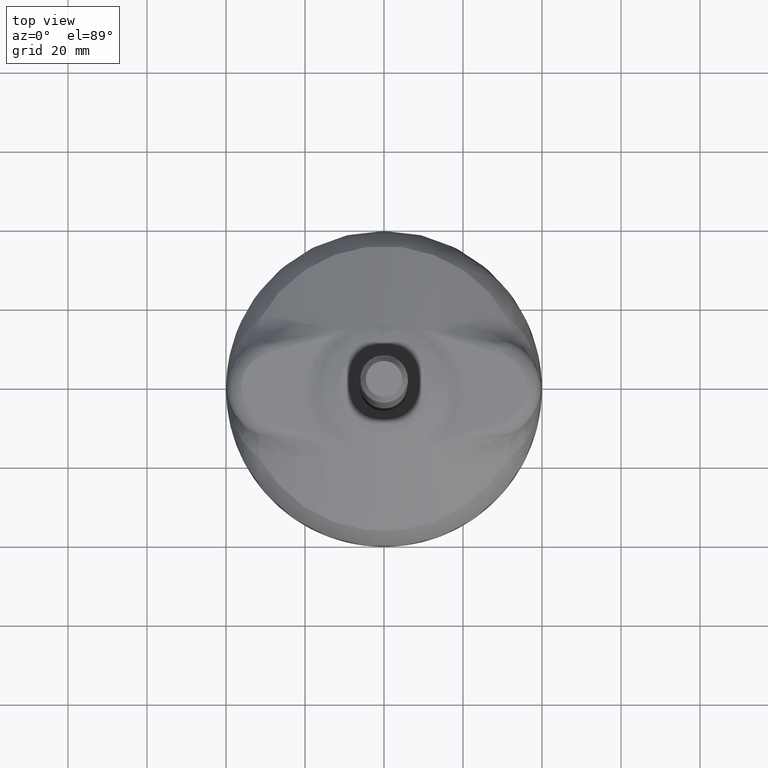
[diagram: clean part render]
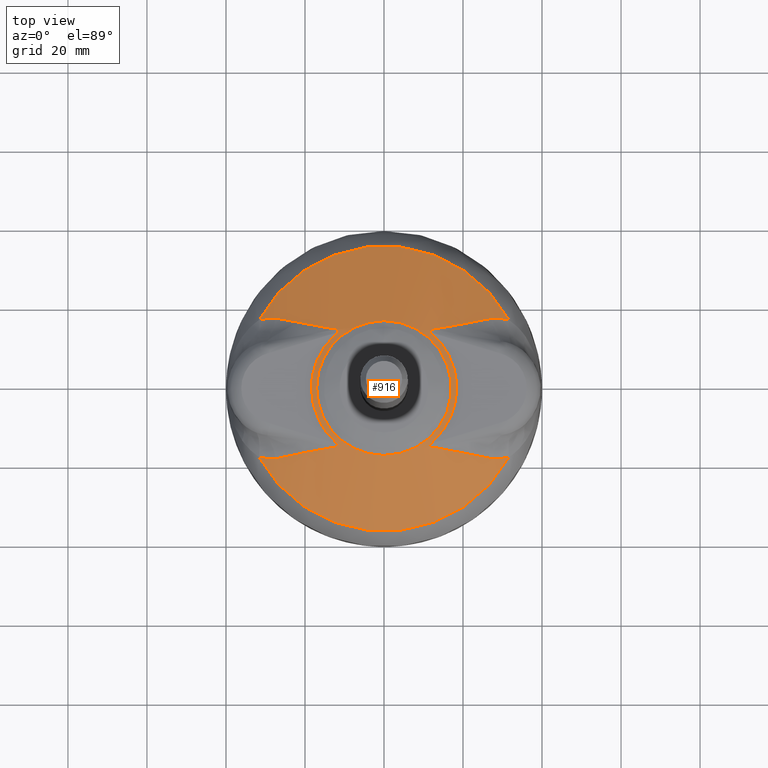
[diagram: same view with one face highlighted and labeled with its STEP entity id]
A machine part, top view. The second image highlights one B-rep face of the part: STEP entity #916.
In plain terms, the highlighted face is a freeform B-spline surface patch.
Its self-contained STEP definition (entity closure, byte-faithful):
#161=CARTESIAN_POINT('',(-31.670609526249098,17.322778746695992,6.870348582546770));
#162=VERTEX_POINT('',#161);
#196=CARTESIAN_POINT('',(31.670609242388803,17.322777597481650,6.870352788680468));
#197=VERTEX_POINT('',#196);
#198=CARTESIAN_POINT('',(-0.000000456221617,0.000002086571564,6.870355946652809));
#199=DIRECTION('',(0.000000066404364,-0.000000303706472,-0.999999999999952));
#200=DIRECTION('',(3.866960E-029,0.999999999999954,-0.000000303706472));
#201=AXIS2_PLACEMENT_3D('',#198,#199,#200);
#202=CIRCLE('',#201,36.098560498766609);
#203=EDGE_CURVE('',#162,#197,#202,.T.);
#335=CARTESIAN_POINT('',(-17.051754797582301,-0.000000682070181,14.704977382487098));
#336=CARTESIAN_POINT('',(-17.051765093716494,34.103507642213621,14.704967025030216));
#337=CARTESIAN_POINT('',(17.051743912638809,34.103518620418924,14.704969289648721));
#338=CARTESIAN_POINT('',(17.051752844633011,0.000008931994330,14.704979647105915));
#339=CARTESIAN_POINT('',(17.051761776627259,-34.103500756430257,14.704990004563113));
#340=CARTESIAN_POINT('',(-17.051747229729123,-34.103507642214417,14.704987739943387));
#341=CARTESIAN_POINT('',(-17.051754797582678,0.000000682070090,14.704977382486701));
#342=CARTESIAN_POINT('',(-23.697713304537071,-0.000000947908518,13.060306376745867));
#343=CARTESIAN_POINT('',(-23.697723133353470,47.395424874549178,13.060291982447650));
#344=CARTESIAN_POINT('',(23.697703637014691,47.395435651275342,13.060295129707564));
#345=CARTESIAN_POINT('',(23.697711570014373,0.000007933000142,13.060309524006220));
#346=CARTESIAN_POINT('',(23.697719503014110,-47.395419785275045,13.060323918304880));
#347=CARTESIAN_POINT('',(-23.697707267355021,-47.395424874549896,13.060320771043260));
#348=CARTESIAN_POINT('',(-23.697713304537409,0.000000947908427,13.060306376745308));
#349=CARTESIAN_POINT('',(-30.101303251753649,-0.000001204052116,10.448061369442806));
#350=CARTESIAN_POINT('',(-30.101312006145793,60.202605115910636,10.448043085521059));
#351=CARTESIAN_POINT('',(30.101295517871645,60.202615074356437,10.448047083233909));
#352=CARTESIAN_POINT('',(30.101301864159808,0.000006346288971,10.448065367156220));
#353=CARTESIAN_POINT('',(30.101308210448018,-60.202602381778476,10.448083651078532));
#354=CARTESIAN_POINT('',(-30.101299313570198,-60.202605115911233,10.448079653363502));
#355=CARTESIAN_POINT('',(-30.101303251753926,0.000001204052025,10.448061369442087));
#356=CARTESIAN_POINT('',(-36.098562921782445,-0.000001443942507,6.870352376246374));
#357=CARTESIAN_POINT('',(-36.098569982808577,72.197124931118609,6.870330449511374));
#358=CARTESIAN_POINT('',(36.098557836198211,72.197133436089047,6.870335243713155));
#359=CARTESIAN_POINT('',(36.098562009339489,0.000004173142462,6.870357170448832));
#360=CARTESIAN_POINT('',(36.098566182480823,-72.197125089804103,6.870379097184515));
#361=CARTESIAN_POINT('',(-36.098561636526490,-72.197124931119035,6.870374302980111));
#362=CARTESIAN_POINT('',(-36.098562921782630,0.000001443942415,6.870352376245504));
#370=(BOUNDED_SURFACE()B_SPLINE_SURFACE(3,3,((#335,#342,#349,#356),(#336,#343,#350,#357),(#337,#344,#351,#358),(#338,#345,#352,#359),(#339,#346,#353,#360),(#340,#347,#354,#361),(#341,#348,#355,#362)),.UNSPECIFIED.,.T.,.F.,.U.)B_SPLINE_SURFACE_WITH_KNOTS((4,3,4),(4,4),(-1.000000E-008,0.500000000000000,1.000000010000000),(0.082997603850490,0.175616742763450),.UNSPECIFIED.)GEOMETRIC_REPRESENTATION_ITEM()RATIONAL_B_SPLINE_SURFACE(((0.918572759748706,0.894312356982217,0.876779335575880,0.865973695529694),(0.306190907668599,0.298104107069908,0.292259766834903,0.288657886963583),(0.306190895420962,0.298104095145743,0.292259755144512,0.288657875417267),(0.918572723005796,0.894312321209723,0.876779300504707,0.865973660890747),(0.306190895420962,0.298104095145743,0.292259755144512,0.288657875417267),(0.306190907668599,0.298104107069908,0.292259766834903,0.288657886963583),(0.918572759748706,0.894312356982217,0.876779335575880,0.865973695529694)))REPRESENTATION_ITEM('')SURFACE());
#371=CARTESIAN_POINT('',(-18.373600121841804,-3.001937E-011,14.364149395563031));
#372=VERTEX_POINT('',#371);
#373=CARTESIAN_POINT('',(-17.051756893401691,-4.541278E-014,14.704976863835860));
#374=VERTEX_POINT('',#373);
#375=CARTESIAN_POINT('',(-18.373610457035458,-4.555379E-014,14.364146622960124));
#376=CARTESIAN_POINT('',(-17.933718828474031,-4.555379E-014,14.482155574846166));
#377=CARTESIAN_POINT('',(-17.493084704977210,-4.555379E-014,14.595761744455965));
#378=CARTESIAN_POINT('',(-17.051756893401691,-4.555379E-014,14.704976863835869));
#386=(BOUNDED_CURVE()B_SPLINE_CURVE(3,(#375,#376,#377,#378),.UNSPECIFIED.,.F.,.U.)B_SPLINE_CURVE_WITH_KNOTS((4,4),(0.082997613850490,0.089303514181248),.UNSPECIFIED.)CURVE()GEOMETRIC_REPRESENTATION_ITEM()RATIONAL_B_SPLINE_CURVE((0.913711018516788,0.915300399562479,0.916920965106109,0.918572715147679))REPRESENTATION_ITEM(''));
#387=EDGE_CURVE('',#372,#374,#386,.T.);
#388=ORIENTED_EDGE('',*,*,#387,.T.);
#389=CARTESIAN_POINT('',(-0.000000976474711,17.051760382923785,14.704972817416817));
#390=VERTEX_POINT('',#389);
#391=CARTESIAN_POINT('',(-0.000000976474712,0.000004465996985,14.704977996145512));
#392=DIRECTION('',(0.000000066404364,-0.000000303706472,-0.999999999999952));
#393=DIRECTION('',(3.866960E-029,0.999999999999954,-0.000000303706472));
#394=AXIS2_PLACEMENT_3D('',#391,#392,#393);
#395=CIRCLE('',#394,17.051755916927601);
#396=EDGE_CURVE('',#374,#390,#395,.T.);
#397=ORIENTED_EDGE('',*,*,#396,.T.);
#398=CARTESIAN_POINT('',(-0.000000976474712,-17.051751450929832,14.704983174874137));
#399=VERTEX_POINT('',#398);
#400=CARTESIAN_POINT('',(-0.000000976474712,0.000004465996985,14.704977996145512));
#401=DIRECTION('',(0.000000066404364,-0.000000303706472,-0.999999999999952));
#402=DIRECTION('',(3.866960E-029,0.999999999999954,-0.000000303706472));
#403=AXIS2_PLACEMENT_3D('',#400,#401,#402);
#404=CIRCLE('',#403,17.051755916927601);
#405=EDGE_CURVE('',#390,#399,#404,.T.);
#406=ORIENTED_EDGE('',*,*,#405,.T.);
#407=CARTESIAN_POINT('',(-0.000000976474712,0.000004465996985,14.704977996145512));
#408=DIRECTION('',(0.000000066404364,-0.000000303706472,-0.999999999999952));
#409=DIRECTION('',(3.866960E-029,0.999999999999954,-0.000000303706472));
#410=AXIS2_PLACEMENT_3D('',#407,#408,#409);
#411=CIRCLE('',#410,17.051755916927601);
#412=EDGE_CURVE('',#399,#374,#411,.T.);
#413=ORIENTED_EDGE('',*,*,#412,.T.);
#414=ORIENTED_EDGE('',*,*,#387,.F.);
#415=CARTESIAN_POINT('',(-12.247463358286939,-13.696315976480724,14.364151189422822));
#416=VERTEX_POINT('',#415);
#417=CARTESIAN_POINT('',(-18.373594954244979,-4.500628E-011,14.364150781864485));
#418=CARTESIAN_POINT('',(-18.373595489222808,-0.473193171099889,14.364150752290669));
#419=CARTESIAN_POINT('',(-18.355370197100772,-0.964727823121007,14.364150729497545));
#420=CARTESIAN_POINT('',(-18.273343016513408,-1.983757791892489,14.364150697857010));
#421=CARTESIAN_POINT('',(-18.209535340886092,-2.511273229795026,14.364150689016110));
#422=CARTESIAN_POINT('',(-18.025980788196634,-3.599683988416787,14.364150685186567));
#423=CARTESIAN_POINT('',(-17.906220911569921,-4.160602654323903,14.364150690205889));
#424=CARTESIAN_POINT('',(-17.599424996325300,-5.310709786240011,14.364150713297661));
#425=CARTESIAN_POINT('',(-17.412365187776391,-5.899921837350972,14.364150731378846));
#426=CARTESIAN_POINT('',(-16.959197403748455,-7.098253214269185,14.364150778836329));
#427=CARTESIAN_POINT('',(-16.693052403121470,-7.707391750772212,14.364150808220909));
#428=CARTESIAN_POINT('',(-16.070410536808190,-8.933298769303180,14.364150875307070));
#429=CARTESIAN_POINT('',(-15.713862767155041,-9.550075112863258,14.364150913014422));
#430=CARTESIAN_POINT('',(-14.900899340782241,-10.774630007609298,14.364150992328058));
#431=CARTESIAN_POINT('',(-14.444422029176119,-11.382396372928046,14.364151033934757));
#432=CARTESIAN_POINT('',(-13.425576679570838,-12.567983169716930,14.364151115084960));
#433=CARTESIAN_POINT('',(-12.863144926522892,-13.145763087682431,14.364151154620401));
#434=CARTESIAN_POINT('',(-12.247463358286950,-13.696315976480724,14.364151189422822));
#435=B_SPLINE_CURVE_WITH_KNOTS('',3,(#417,#418,#419,#420,#421,#422,#423,#424,#425,#426,#427,#428,#429,#430,#431,#432,#433,#434),.UNSPECIFIED.,.F.,.U.,(4,2,2,2,2,2,2,2,4),(0.500000801886927,0.562500000000000,0.625000000000000,0.687500000000000,0.750000000000000,0.812500000000000,0.875000000000000,0.937500000000000,1.0),.UNSPECIFIED.);
#436=EDGE_CURVE('',#372,#416,#435,.T.);
#437=ORIENTED_EDGE('',*,*,#436,.T.);
#438=CARTESIAN_POINT('',(-27.431562335859390,-17.807965664157329,8.769065912218522));
#439=VERTEX_POINT('',#438);
#440=CARTESIAN_POINT('',(-12.247463358286987,-13.696315976480770,14.364151189422799));
#441=CARTESIAN_POINT('',(-12.209832988893019,-13.730262159650678,14.364059602406808));
#442=CARTESIAN_POINT('',(-12.137080330507088,-13.795891998194389,14.363882532689061));
#443=CARTESIAN_POINT('',(-12.033966366089860,-13.893418626419088,14.362339196065282));
#444=CARTESIAN_POINT('',(-11.940307916815570,-13.986229092528301,14.359839152975033));
#445=CARTESIAN_POINT('',(-11.856383946903721,-14.074611726127454,14.356306029212039));
#446=CARTESIAN_POINT('',(-11.782312837391339,-14.158676579245741,14.351755836109920));
#447=CARTESIAN_POINT('',(-11.718239124224098,-14.238564822603919,14.346180618058742));
#448=CARTESIAN_POINT('',(-11.664284971735450,-14.314400054819128,14.339576478922259));
#449=CARTESIAN_POINT('',(-11.620581705877962,-14.386311387919767,14.331930958344989));
#450=CARTESIAN_POINT('',(-11.587220036425382,-14.454415361836999,14.323235729448459));
#451=CARTESIAN_POINT('',(-11.564454089920238,-14.518887054311941,14.313436652141160));
#452=CARTESIAN_POINT('',(-11.550454299254202,-14.588111487463019,14.301080086134400));
#453=CARTESIAN_POINT('',(-11.553049244221052,-14.664015066789222,14.284416800333322));
#454=CARTESIAN_POINT('',(-11.584492400240290,-14.742822891276219,14.262153708770517));
#455=CARTESIAN_POINT('',(-11.642762995970603,-14.813128558573840,14.237058332424890));
#456=CARTESIAN_POINT('',(-11.726565713952819,-14.875319115402487,14.209222923904600));
#457=CARTESIAN_POINT('',(-11.835836202788059,-14.930020457719049,14.178446128352928));
#458=CARTESIAN_POINT('',(-11.952757568569606,-14.970798373631030,14.149133505850861));
#459=CARTESIAN_POINT('',(-12.074502627004128,-15.002986779103619,14.120617324645158));
#460=CARTESIAN_POINT('',(-12.199457717514630,-15.030389314311190,14.092354045883852));
#461=CARTESIAN_POINT('',(-12.345582181508160,-15.057339795320109,14.060106630801339));
#462=CARTESIAN_POINT('',(-12.533994772480932,-15.086061837716732,14.019389149782461));
#463=CARTESIAN_POINT('',(-12.752959244958292,-15.115636633041101,13.972188320813462));
#464=CARTESIAN_POINT('',(-12.990595053267748,-15.145981314922910,13.920436567830970));
#465=CARTESIAN_POINT('',(-13.214413319678448,-15.172380227144171,13.871366884159082));
#466=CARTESIAN_POINT('',(-13.424192674544150,-15.195480969686610,13.825026245952472));
#467=CARTESIAN_POINT('',(-13.619776487819788,-15.215653386750802,13.781503342096141));
#468=CARTESIAN_POINT('',(-13.801016676987109,-15.233298051181023,13.740870136408017));
#469=CARTESIAN_POINT('',(-13.967785045423412,-15.248771458114271,13.703195962219667));
#470=CARTESIAN_POINT('',(-14.119968800480232,-15.262401924352748,13.668544477296340));
#471=CARTESIAN_POINT('',(-14.257468858468423,-15.274491545060281,13.636973234325790));
#472=CARTESIAN_POINT('',(-14.380201718125249,-15.285295852918699,13.608537570987091));
#473=CARTESIAN_POINT('',(-14.488088220254559,-15.295088956018940,13.583278006629490));
#474=CARTESIAN_POINT('',(-14.581084706190271,-15.303959705742320,13.561259452844940));
#475=CARTESIAN_POINT('',(-14.712398275002959,-15.318190946084552,13.529603718174139));
#476=CARTESIAN_POINT('',(-14.887421784743001,-15.339409452402350,13.486479527045294));
#477=CARTESIAN_POINT('',(-15.111820044958559,-15.367419675296080,13.430200681064051));
#478=CARTESIAN_POINT('',(-15.337930053511906,-15.397360422040350,13.372278856798726));
#479=CARTESIAN_POINT('',(-15.565814916994970,-15.428987902044279,13.312730911247423));
#480=CARTESIAN_POINT('',(-15.795486116651968,-15.462370691331298,13.251513283743957));
#481=CARTESIAN_POINT('',(-16.026967222138303,-15.497493149090710,13.188598087380592));
#482=CARTESIAN_POINT('',(-16.260276578710560,-15.534363285338031,13.123952418853246));
#483=CARTESIAN_POINT('',(-16.495432027137145,-15.572983451260120,13.057543986375737));
#484=CARTESIAN_POINT('',(-16.732449630235010,-15.613358336357038,12.989339580072359));
#485=CARTESIAN_POINT('',(-16.971344029786756,-15.655492812446932,12.919305490123866));
#486=CARTESIAN_POINT('',(-17.212128354453007,-15.699392553883779,12.847407392769700));
#487=CARTESIAN_POINT('',(-17.454814265813702,-15.745063840671850,12.773610391137762));
#488=CARTESIAN_POINT('',(-17.699411901246179,-15.792513810935509,12.697878977200828));
#489=CARTESIAN_POINT('',(-17.945930088306891,-15.841749723419321,12.620177155935687));
#490=CARTESIAN_POINT('',(-18.194375557241635,-15.892781771483470,12.540467993382894));
#491=CARTESIAN_POINT('',(-18.444755938393961,-15.945612482862600,12.458715339511780));
#492=CARTESIAN_POINT('',(-18.697068410478600,-16.000276948349470,12.374877311290989));
#493=CARTESIAN_POINT('',(-19.163954951185300,-16.103860623028979,12.217066762515538));
#494=CARTESIAN_POINT('',(-19.884898628639739,-16.274665802541229,11.963368538122641));
#495=CARTESIAN_POINT('',(-20.899377005651679,-16.524824152363362,11.586375166424139));
#496=CARTESIAN_POINT('',(-22.041516210718576,-16.805725456550658,11.139258091797210));
#497=CARTESIAN_POINT('',(-23.022478480071761,-17.040668032064438,10.734469175106639));
#498=CARTESIAN_POINT('',(-23.802836837681781,-17.218351376862799,10.401351568483710));
#499=CARTESIAN_POINT('',(-24.340515386702400,-17.334504178366466,10.167918560183690));
#500=CARTESIAN_POINT('',(-24.879534099883521,-17.445138416667639,9.929827893110774));
#501=CARTESIAN_POINT('',(-25.341641095891600,-17.536052056434919,9.721903130600763));
#502=CARTESIAN_POINT('',(-25.724741413520654,-17.606222393972502,9.547765899863554));
#503=CARTESIAN_POINT('',(-26.026324489312866,-17.655576341124657,9.410510539626383));
#504=CARTESIAN_POINT('',(-26.320929496934959,-17.698626260772194,9.276148152865066));
#505=CARTESIAN_POINT('',(-26.608551741201417,-17.735351241101721,9.144827532078436));
#506=CARTESIAN_POINT('',(-26.889139724062680,-17.765767861774680,9.016656249013774));
#507=CARTESIAN_POINT('',(-27.162616742180440,-17.790517875267589,8.891742372642277));
#508=CARTESIAN_POINT('',(-27.342750936896739,-17.802204043307160,8.809576217373497));
#509=CARTESIAN_POINT('',(-27.431562335859390,-17.807965664157329,8.769065912218522));
#510=B_SPLINE_CURVE_WITH_KNOTS('',3,(#440,#441,#442,#443,#444,#445,#446,#447,#448,#449,#450,#451,#452,#453,#454,#455,#456,#457,#458,#459,#460,#461,#462,#463,#464,#465,#466,#467,#468,#469,#470,#471,#472,#473,#474,#475,#476,#477,#478,#479,#480,#481,#482,#483,#484,#485,#486,#487,#488,#489,#490,#491,#492,#493,#494,#495,#496,#497,#498,#499,#500,#501,#502,#503,#504,#505,#506,#507,#508,#509),.UNSPECIFIED.,.F.,.U.,(4,1,1,1,1,1,1,1,1,1,1,1,1,1,1,1,1,1,1,1,1,1,1,1,1,1,1,1,1,1,1,1,1,1,1,1,1,1,1,1,1,1,1,1,1,1,1,1,1,1,1,1,1,1,1,1,1,1,1,1,1,1,1,1,1,1,1,4),(0.0,0.008234198882158,0.015919584846048,0.023059545091950,0.029659387797493,0.035726980885653,0.041273677459984,0.046315667912286,0.050875959053944,0.054987234860194,0.058695819219114,0.062066606842298,0.066594691703850,0.071115724280556,0.076068556914226,0.081802103688626,0.088552886772564,0.096473723663069,0.102436528874756,0.109525666525436,0.117755230341667,0.127137341796711,0.141188731565862,0.154465411914163,0.166959707840485,0.178664521219337,0.189573315189582,0.199680100222871,0.208979422595926,0.217466356355529,0.225136500568192,0.231985985054032,0.238011490787353,0.243210297967959,0.247580391989394,0.260079756808970,0.272700305958176,0.285444547726351,0.298314912936970,0.311313757542057,0.324443365213282,0.337705949919458,0.351103658481478,0.364638573096835,0.378312713826999,0.392128041041881,0.406086457816590,0.420189812276499,0.434439899887392,0.448838465688210,0.463387206464462,0.478087772861003,0.492941771433287,0.545212716572814,0.605320229309287,0.673418294525018,0.749651547382571,0.781905315923493,0.814269290003771,0.846741611726366,0.879320406435158,0.897915977271629,0.916058907457288,0.933749452097114,0.950988061218804,0.967775393396867,0.984112331376325,1.0),.UNSPECIFIED.);
#511=EDGE_CURVE('',#416,#439,#510,.T.);
#512=ORIENTED_EDGE('',*,*,#511,.T.);
#513=CARTESIAN_POINT('',(-31.670606601228080,-17.322779921263709,6.870359104627349));
#514=VERTEX_POINT('',#513);
#515=CARTESIAN_POINT('',(-27.431562335861191,-17.807965664157429,8.769065912217709));
#516=CARTESIAN_POINT('',(-27.491674596895599,-17.811240316786360,8.741673151392719));
#517=CARTESIAN_POINT('',(-27.612000723020685,-17.817795156988090,8.686841329444544));
#518=CARTESIAN_POINT('',(-27.792844815935609,-17.824237385034230,8.604598409450434));
#519=CARTESIAN_POINT('',(-27.974117524731991,-17.828190492335686,8.522283314671546));
#520=CARTESIAN_POINT('',(-28.155824191176841,-17.829395475436534,8.439906216564918));
#521=CARTESIAN_POINT('',(-28.337948763403489,-17.827903289929321,8.357471603699873));
#522=CARTESIAN_POINT('',(-28.520480158302224,-17.823682081224540,8.274985461954566));
#523=CARTESIAN_POINT('',(-28.703405181789854,-17.816722736045058,8.192453344758606));
#524=CARTESIAN_POINT('',(-28.886710436125998,-17.807010524715920,8.109880891381446));
#525=CARTESIAN_POINT('',(-29.070381812242537,-17.794532733973060,8.027273687277553));
#526=CARTESIAN_POINT('',(-29.254404631712241,-17.779276625184970,7.944637301296981));
#527=CARTESIAN_POINT('',(-29.438763614451869,-17.761229993515116,7.861977275383225));
#528=CARTESIAN_POINT('',(-29.623442893925404,-17.740381028577978,7.779299126946988));
#529=CARTESIAN_POINT('',(-29.808426019304090,-17.716718359875706,7.696608348253617));
#530=CARTESIAN_POINT('',(-29.993695964273421,-17.690231064293680,7.613910405073504));
#531=CARTESIAN_POINT('',(-30.179235124425531,-17.660908639865418,7.531210741351972));
#532=CARTESIAN_POINT('',(-30.365025355955304,-17.628741153453017,7.448514760478171));
#533=CARTESIAN_POINT('',(-30.551047862019743,-17.593718723549941,7.365827894573444));
#534=CARTESIAN_POINT('',(-30.737283651867568,-17.555833500001150,7.283155343649431));
#535=CARTESIAN_POINT('',(-30.923711853369923,-17.515072277290464,7.200503053070284));
#536=CARTESIAN_POINT('',(-31.110316079662237,-17.471444243849820,7.117874045848437));
#537=CARTESIAN_POINT('',(-31.297060580903274,-17.424876911503912,7.035282182220915));
#538=CARTESIAN_POINT('',(-31.483979767432277,-17.375606648049288,6.952700530092076));
#539=CARTESIAN_POINT('',(-31.608320732354343,-17.340410604433359,6.897840186125956));
#540=CARTESIAN_POINT('',(-31.670606601228037,-17.322779921263841,6.870359104627350));
#541=B_SPLINE_CURVE_WITH_KNOTS('',3,(#515,#516,#517,#518,#519,#520,#521,#522,#523,#524,#525,#526,#527,#528,#529,#530,#531,#532,#533,#534,#535,#536,#537,#538,#539,#540),.UNSPECIFIED.,.F.,.U.,(4,1,1,1,1,1,1,1,1,1,1,1,1,1,1,1,1,1,1,1,1,1,1,4),(0.0,0.042315249583599,0.084702022030000,0.127165445131502,0.169710617013970,0.212342600970608,0.255066420363232,0.297887053601678,0.340809429211578,0.383838421000535,0.426978843331742,0.470235446513863,0.513612912315292,0.557115849610102,0.600748790162669,0.644516184557064,0.688422398276690,0.732471707939069,0.776668297689888,0.821016255759859,0.865519571187295,0.910182130708586,0.955007715818319,1.0),.UNSPECIFIED.);
#542=EDGE_CURVE('',#439,#514,#541,.T.);
#543=ORIENTED_EDGE('',*,*,#542,.T.);
#544=CARTESIAN_POINT('',(31.670606317372449,-17.322778772038770,6.870363310759960));
#545=VERTEX_POINT('',#544);
#546=CARTESIAN_POINT('',(-0.000000456221617,0.000002086571564,6.870355946652809));
#547=DIRECTION('',(0.000000066404364,-0.000000303706472,-0.999999999999952));
#548=DIRECTION('',(3.866960E-029,0.999999999999954,-0.000000303706472));
#549=AXIS2_PLACEMENT_3D('',#546,#547,#548);
#550=CIRCLE('',#549,36.098560498766609);
#551=EDGE_CURVE('',#545,#514,#550,.T.);
#552=ORIENTED_EDGE('',*,*,#551,.F.);
#553=CARTESIAN_POINT('',(27.431562797605505,-17.807963670089350,8.769069409637606));
#554=VERTEX_POINT('',#553);
#555=CARTESIAN_POINT('',(31.670606317372449,-17.322778772038760,6.870363310759958));
#556=CARTESIAN_POINT('',(31.610913428066834,-17.339686472523020,6.896700020192931));
#557=CARTESIAN_POINT('',(31.491739775708954,-17.373441789833372,6.949279848221465));
#558=CARTESIAN_POINT('',(31.312603892403757,-17.420838229542291,7.028417209204011));
#559=CARTESIAN_POINT('',(31.133626820172942,-17.465751854677070,7.107564328931886));
#560=CARTESIAN_POINT('',(30.954776161322449,-17.507965164785546,7.186746158849982));
#561=CARTESIAN_POINT('',(30.776084025133525,-17.547544418627670,7.265950170218550));
#562=CARTESIAN_POINT('',(30.597564766273841,-17.584480772539312,7.345173796300401));
#563=CARTESIAN_POINT('',(30.419236904378824,-17.618785932660519,7.424411786031859));
#564=CARTESIAN_POINT('',(30.241117272154213,-17.650466646264753,7.503659575640242));
#565=CARTESIAN_POINT('',(30.063222567692453,-17.679531494510918,7.582912389888671));
#566=CARTESIAN_POINT('',(29.885568932966901,-17.705989072686606,7.662165481929145));
#567=CARTESIAN_POINT('',(29.708172059004983,-17.729848467084359,7.741414069543028));
#568=CARTESIAN_POINT('',(29.531047150966362,-17.751119119159569,7.820653352362612));
#569=CARTESIAN_POINT('',(29.354208930880315,-17.769810853952428,7.899878507485093));
#570=CARTESIAN_POINT('',(29.177671630895247,-17.785933861586340,7.979084690914635));
#571=CARTESIAN_POINT('',(29.001448988631246,-17.799498702888592,8.058267037245155));
#572=CARTESIAN_POINT('',(28.825554245209911,-17.810516265534790,8.137420660606924));
#573=CARTESIAN_POINT('',(28.650000132170057,-17.818997893581507,8.216540652355715));
#574=CARTESIAN_POINT('',(28.474798901666340,-17.824954875180680,8.295622090526607));
#575=CARTESIAN_POINT('',(28.299962196790791,-17.828400316982680,8.374660005656557));
#576=CARTESIAN_POINT('',(28.125501517986276,-17.829342140227041,8.453649508919229));
#577=CARTESIAN_POINT('',(27.951426472864036,-17.827809110367660,8.532585316383859));
#578=CARTESIAN_POINT('',(27.777751275832493,-17.823753940574413,8.611463520477727));
#579=CARTESIAN_POINT('',(27.604470544418565,-17.817413908387749,8.690274997717536));
#580=CARTESIAN_POINT('',(27.489167702153129,-17.811112054619073,8.742818737465884));
#581=CARTESIAN_POINT('',(27.431562797611122,-17.807963670089691,8.769069409635042));
#582=B_SPLINE_CURVE_WITH_KNOTS('',3,(#555,#556,#557,#558,#559,#560,#561,#562,#563,#564,#565,#566,#567,#568,#569,#570,#571,#572,#573,#574,#575,#576,#577,#578,#579,#580,#581),.UNSPECIFIED.,.F.,.U.,(4,1,1,1,1,1,1,1,1,1,1,1,1,1,1,1,1,1,1,1,1,1,1,1,4),(0.0,0.043120957863045,0.086088679933034,0.128906393370595,0.171577416629412,0.214105157232212,0.256493109414426,0.298744851636347,0.340864043964830,0.382854425326188,0.424719810632250,0.466464087782053,0.508091214542098,0.549605215308551,0.591010177755293,0.632310249372127,0.673509633897958,0.714612587654244,0.755623415784389,0.796546468405341,0.837386136677869,0.878146848802618,0.918833065949206,0.959449278126216,1.0),.UNSPECIFIED.);
#583=EDGE_CURVE('',#545,#554,#582,.T.);
#584=ORIENTED_EDGE('',*,*,#583,.T.);
#585=CARTESIAN_POINT('',(12.247475494137040,-13.696311550864419,14.364151189717290));
#586=VERTEX_POINT('',#585);
#587=CARTESIAN_POINT('',(27.431562797605505,-17.807963670089350,8.769069409637606));
#588=CARTESIAN_POINT('',(27.375701759307891,-17.804427479041891,8.794555868903185));
#589=CARTESIAN_POINT('',(27.261415428344840,-17.797192771046561,8.846698722087959));
#590=CARTESIAN_POINT('',(27.086398313639403,-17.782875335991861,8.926732692175941));
#591=CARTESIAN_POINT('',(26.903895106769660,-17.765659548116201,9.010245062469446));
#592=CARTESIAN_POINT('',(26.713944950814959,-17.745194796343210,9.097181871110744));
#593=CARTESIAN_POINT('',(26.516563097212469,-17.721458868861781,9.187473001078727));
#594=CARTESIAN_POINT('',(26.311774320092042,-17.694330592413856,9.281049163924433));
#595=CARTESIAN_POINT('',(26.099601945105711,-17.663717800707595,9.377836011858019));
#596=CARTESIAN_POINT('',(25.880077466886569,-17.629496910016719,9.477759933531420));
#597=CARTESIAN_POINT('',(25.653213109123151,-17.591624708344298,9.580730200606505));
#598=CARTESIAN_POINT('',(25.319547943339998,-17.531920820912326,9.731777316460972));
#599=CARTESIAN_POINT('',(24.881939947515988,-17.448309576730207,9.928019957404208));
#600=CARTESIAN_POINT('',(24.343099402343320,-17.338397579542367,10.165880331568678));
#601=CARTESIAN_POINT('',(23.805798565500918,-17.221439236968557,10.399426652016079));
#602=CARTESIAN_POINT('',(23.281361474849525,-17.099238598504797,10.624078764006098));
#603=CARTESIAN_POINT('',(22.774036352630141,-16.976716855164831,10.837458171291942));
#604=CARTESIAN_POINT('',(22.287965759023244,-16.858953702698759,11.037389137594468));
#605=CARTESIAN_POINT('',(21.817535453864647,-16.744089420597994,11.226836875945798));
#606=CARTESIAN_POINT('',(21.362630339493059,-16.632721825338830,11.406135317705230));
#607=CARTESIAN_POINT('',(20.923203513611139,-16.525173002932405,11.575646883110180));
#608=CARTESIAN_POINT('',(20.499174066747372,-16.421825516054628,11.735710316760462));
#609=CARTESIAN_POINT('',(20.090453808729087,-16.323037995449447,11.886653606801890));
#610=CARTESIAN_POINT('',(19.696942471587597,-16.229163368201064,12.028791067438174));
#611=CARTESIAN_POINT('',(19.318526493906607,-16.140555530304059,12.162422205779919));
#612=CARTESIAN_POINT('',(18.902788862106679,-16.045579652559233,12.305887160063159));
#613=CARTESIAN_POINT('',(18.446873537338245,-15.945598137027201,12.458685770755460));
#614=CARTESIAN_POINT('',(17.947969400629091,-15.841774451770700,12.620153042441283));
#615=CARTESIAN_POINT('',(17.456697196327859,-15.745100441047461,12.773618231177261));
#616=CARTESIAN_POINT('',(16.972991265587140,-15.655521881423581,12.919368289187583));
#617=CARTESIAN_POINT('',(16.496768569910309,-15.572961810938029,13.057687331959510));
#618=CARTESIAN_POINT('',(16.027908780619242,-15.497439228201770,13.188833846540428));
#619=CARTESIAN_POINT('',(15.566314785703550,-15.428685516150122,13.313114317984269));
#620=CARTESIAN_POINT('',(15.111695424890666,-15.367519053156490,13.430618513772711));
#621=CARTESIAN_POINT('',(14.766182125695181,-15.323760501958219,13.516783288285421));
#622=CARTESIAN_POINT('',(14.514093211005633,-15.297425346138349,13.577207034782699));
#623=CARTESIAN_POINT('',(14.340648876974388,-15.281995182173143,13.617748381475923));
#624=CARTESIAN_POINT('',(14.128086679201754,-15.263330536625901,13.666729177651600));
#625=CARTESIAN_POINT('',(13.876688584611330,-15.240735637024249,13.723856239340350));
#626=CARTESIAN_POINT('',(13.586909475549746,-15.212770282537770,13.788901857866538));
#627=CARTESIAN_POINT('',(13.259267756749910,-15.178048280896490,13.861550107811050));
#628=CARTESIAN_POINT('',(12.894489811103714,-15.134487715550240,13.941540291783928));
#629=CARTESIAN_POINT('',(12.582676475836220,-15.093460482077219,14.008878785293589));
#630=CARTESIAN_POINT('',(12.343659513314313,-15.057061865466599,14.060518613787213));
#631=CARTESIAN_POINT('',(12.196606596263768,-15.029847749084061,14.092985511794287));
#632=CARTESIAN_POINT('',(12.070980095793740,-15.002184574382991,14.121418938343538));
#633=CARTESIAN_POINT('',(11.940571513536302,-14.967499903017892,14.152001369573753));
#634=CARTESIAN_POINT('',(11.810302530486501,-14.920533455499754,14.184959339631931));
#635=CARTESIAN_POINT('',(11.687730008050918,-14.851731691979950,14.221021069412359));
#636=CARTESIAN_POINT('',(11.601510924097241,-14.770960026064600,14.253206862483250));
#637=CARTESIAN_POINT('',(11.553764101340532,-14.676191029916231,14.281694521106726));
#638=CARTESIAN_POINT('',(11.549347515270480,-14.574872330157740,14.304101975583359));
#639=CARTESIAN_POINT('',(11.577468492314820,-14.472911103818401,14.320994762973390));
#640=CARTESIAN_POINT('',(11.629389464292078,-14.366897709012829,14.334537993995010));
#641=CARTESIAN_POINT('',(11.706283293727228,-14.252011859278110,14.345459918683492));
#642=CARTESIAN_POINT('',(11.807475826566320,-14.127452803792142,14.353917375109489));
#643=CARTESIAN_POINT('',(11.932710071849911,-13.992715240398161,14.359886293964442));
#644=CARTESIAN_POINT('',(12.081222922793682,-13.846935660494371,14.363541663256090));
#645=CARTESIAN_POINT('',(12.190035505100738,-13.748351932170038,14.363940599330828));
#646=CARTESIAN_POINT('',(12.247475494137040,-13.696311550864419,14.364151189717290));
#647=B_SPLINE_CURVE_WITH_KNOTS('',3,(#587,#588,#589,#590,#591,#592,#593,#594,#595,#596,#597,#598,#599,#600,#601,#602,#603,#604,#605,#606,#607,#608,#609,#610,#611,#612,#613,#614,#615,#616,#617,#618,#619,#620,#621,#622,#623,#624,#625,#626,#627,#628,#629,#630,#631,#632,#633,#634,#635,#636,#637,#638,#639,#640,#641,#642,#643,#644,#645,#646),.UNSPECIFIED.,.F.,.U.,(4,1,1,1,1,1,1,1,1,1,1,1,1,1,1,1,1,1,1,1,1,1,1,1,1,1,1,1,1,1,1,1,1,1,1,1,1,1,1,1,1,1,1,1,1,1,1,1,1,1,1,1,1,1,1,1,1,4),(0.0,0.009993391598105,0.020445521501754,0.031356175691647,0.042724981918223,0.054551425305514,0.066834860858642,0.079574523538304,0.092769536407379,0.106418917238251,0.120521583882806,0.153068436764829,0.185521203893143,0.217878920555641,0.250140659213556,0.280326731060131,0.309497571263672,0.337659590186189,0.364819409080544,0.390983878590456,0.416160103985580,0.440355478413881,0.463577725784984,0.485834955325876,0.507135730404374,0.536686893448282,0.565635300304786,0.593994294199393,0.621777980490448,0.649001296025532,0.675680082001834,0.701831159958945,0.727472410341073,0.752622852836360,0.760122783036574,0.769810094326317,0.781673354725548,0.795696988506496,0.811861678689654,0.830144426905574,0.850518477534027,0.872953176373957,0.882403450435870,0.890686771323993,0.897815555156057,0.903804277470760,0.913165175772785,0.920873231643892,0.927244992072628,0.932804228568600,0.938288202931144,0.943708612538524,0.950057491117796,0.957516700002258,0.966191732384180,0.976143459065901,0.987406608494669,1.0),.UNSPECIFIED.);
#648=EDGE_CURVE('',#554,#586,#647,.T.);
#649=ORIENTED_EDGE('',*,*,#648,.T.);
#650=CARTESIAN_POINT('',(12.247413934565269,13.696333729247252,14.364151188211252));
#651=VERTEX_POINT('',#650);
#652=CARTESIAN_POINT('',(12.247475494137040,-13.696311550864454,14.364151189717282));
#653=CARTESIAN_POINT('',(12.863156386587971,-13.145758457176882,14.364151236682750));
#654=CARTESIAN_POINT('',(13.425587503211341,-12.567978411761050,14.364151271843189));
#655=CARTESIAN_POINT('',(14.444431679422308,-11.382391468849942,14.364151326004640));
#656=CARTESIAN_POINT('',(14.900908453889619,-10.774625084666710,14.364151345022190));
#657=CARTESIAN_POINT('',(15.713870908984330,-9.550070218675440,14.364151373677348));
#658=CARTESIAN_POINT('',(16.070418244312179,-8.933293922654299,14.364151383322746));
#659=CARTESIAN_POINT('',(16.693059337078417,-7.707387031856827,14.364151398929090));
#660=CARTESIAN_POINT('',(16.959203998326434,-7.098248575549772,14.364151404891008));
#661=CARTESIAN_POINT('',(17.412371184662710,-5.899917367369358,14.364151417618412));
#662=CARTESIAN_POINT('',(17.599430734788061,-5.310705404846954,14.364151424380520));
#663=CARTESIAN_POINT('',(17.906226198141908,-4.160598442801750,14.364151442034174));
#664=CARTESIAN_POINT('',(18.025985881235581,-3.599679858239945,14.364151452920130));
#665=CARTESIAN_POINT('',(18.209540096266132,-2.511269246258910,14.364151481127582));
#666=CARTESIAN_POINT('',(18.273347627736680,-1.983753873712866,14.364151498442819));
#667=CARTESIAN_POINT('',(18.355375082051818,-0.964717478631287,14.364151540977790));
#668=CARTESIAN_POINT('',(18.373600207289442,-0.473176538830546,14.364151566191818));
#669=CARTESIAN_POINT('',(18.373598010003239,0.473220418548143,14.364151625340687));
#670=CARTESIAN_POINT('',(18.355370599521400,0.964762611628376,14.364151648133708));
#671=CARTESIAN_POINT('',(18.273338402051486,1.983799879140585,14.364151679774082));
#672=CARTESIAN_POINT('',(18.209528412500951,2.511315551498018,14.364151688614797));
#673=CARTESIAN_POINT('',(18.025969123869714,3.599726423346316,14.364151692444072));
#674=CARTESIAN_POINT('',(17.906206825043199,4.160644967892099,14.364151687424641));
#675=CARTESIAN_POINT('',(17.599406005983560,5.310751433911175,14.364151664332729));
#676=CARTESIAN_POINT('',(17.412343715647701,5.899962940251713,14.364151646251520));
#677=CARTESIAN_POINT('',(16.959170982658684,7.098292738067514,14.364151598794100));
#678=CARTESIAN_POINT('',(16.693023514746919,7.707430239881435,14.364151569409600));
#679=CARTESIAN_POINT('',(16.070376832318210,8.933334643002723,14.364151502323750));
#680=CARTESIAN_POINT('',(15.713826713861399,9.550109405367078,14.364151464616629));
#681=CARTESIAN_POINT('',(14.900858843567210,10.774660557676579,14.364151385303568));
#682=CARTESIAN_POINT('',(14.444379437098201,11.382424761213890,14.364151343697250));
#683=CARTESIAN_POINT('',(13.425530314201120,12.568006658341059,14.364151262547949));
#684=CARTESIAN_POINT('',(12.863096883278672,13.145783837939970,14.364151223013044));
#685=CARTESIAN_POINT('',(12.247413934565269,13.696333729247261,14.364151188211252));
#686=B_SPLINE_CURVE_WITH_KNOTS('',3,(#652,#653,#654,#655,#656,#657,#658,#659,#660,#661,#662,#663,#664,#665,#666,#667,#668,#669,#670,#671,#672,#673,#674,#675,#676,#677,#678,#679,#680,#681,#682,#683,#684,#685),.UNSPECIFIED.,.F.,.U.,(4,2,2,2,2,2,2,2,2,2,2,2,2,2,2,2,4),(0.0,0.062500000000000,0.125000000000000,0.187500000000000,0.250000000000000,0.312500000000000,0.375000000000000,0.437500000000000,0.500000000000000,0.562500000000000,0.625000000000000,0.687500000000000,0.750000000000000,0.812500000000000,0.875000000000000,0.937500000000000,1.0),.UNSPECIFIED.);
#687=EDGE_CURVE('',#586,#651,#686,.T.);
#688=ORIENTED_EDGE('',*,*,#687,.T.);
#689=CARTESIAN_POINT('',(27.431564056593441,17.807965539425094,8.769059025537770));
#690=VERTEX_POINT('',#689);
#691=CARTESIAN_POINT('',(12.247413934565341,13.696333729247280,14.364151188211219));
#692=CARTESIAN_POINT('',(12.209783367336399,13.730279799078508,14.364059602949192));
#693=CARTESIAN_POINT('',(12.137030310421411,13.795909432972859,14.363882536583418));
#694=CARTESIAN_POINT('',(12.033915666677562,13.893435723573663,14.362339230028979));
#695=CARTESIAN_POINT('',(11.940256468476568,13.986245870527423,14.359839235882470));
#696=CARTESIAN_POINT('',(11.856331675206562,14.074628199720442,14.356306181363461));
#697=CARTESIAN_POINT('',(11.782259668335120,14.158692763873001,14.351756077611592));
#698=CARTESIAN_POINT('',(11.718184983009261,14.238580733261420,14.346180969312002));
#699=CARTESIAN_POINT('',(11.664229782799580,14.314415705682700,14.339576960781420));
#700=CARTESIAN_POINT('',(11.620525392042177,14.386326792425839,14.331931592329990));
#701=CARTESIAN_POINT('',(11.587162516854679,14.454430529881810,14.323236538743121));
#702=CARTESIAN_POINT('',(11.564395276188700,14.518902000809851,14.313437660643700));
#703=CARTESIAN_POINT('',(11.550393835318001,14.588126498191050,14.301081298242782));
#704=CARTESIAN_POINT('',(11.552986862110552,14.664030582027587,14.284418178466378));
#705=CARTESIAN_POINT('',(11.584428644876372,14.742839417557239,14.262155078602428));
#706=CARTESIAN_POINT('',(11.642698651963880,14.813145786529750,14.237059661193479));
#707=CARTESIAN_POINT('',(11.726501377062689,14.875336715958991,14.209224213783259));
#708=CARTESIAN_POINT('',(11.835772430506568,14.930038180870858,14.178447369179020));
#709=CARTESIAN_POINT('',(11.952694456998747,14.970815891461958,14.149134768372118));
#710=CARTESIAN_POINT('',(12.074440152501218,15.003003954038761,14.120618652459768));
#711=CARTESIAN_POINT('',(12.199395782975930,15.030406102273242,14.092355471375972));
#712=CARTESIAN_POINT('',(12.345521103303032,15.057356173686150,14.060108121936929));
#713=CARTESIAN_POINT('',(12.533933762421459,15.086077529859457,14.019390948923768));
#714=CARTESIAN_POINT('',(12.752897541508109,15.115651455306050,13.972190642189229));
#715=CARTESIAN_POINT('',(12.990531931584050,15.145995148621358,13.920439603666921));
#716=CARTESIAN_POINT('',(13.214349194217252,15.172393222207750,13.871370520132842));
#717=CARTESIAN_POINT('',(13.424127967765269,15.195493260197258,13.825030363635388));
#718=CARTESIAN_POINT('',(13.619711627609590,15.215665096214400,13.781507819059360));
#719=CARTESIAN_POINT('',(13.800952096099738,15.233309293327839,13.740874846698929));
#720=CARTESIAN_POINT('',(13.967721180580787,15.248782338564411,13.703200776794230));
#721=CARTESIAN_POINT('',(14.119906091609398,15.262412542303668,13.668549264423371));
#722=CARTESIAN_POINT('',(14.257407748072970,15.274501994506760,13.636977860082350));
#723=CARTESIAN_POINT('',(14.380142650422272,15.285306225443350,13.608541899477141));
#724=CARTESIAN_POINT('',(14.488031641137491,15.295099339389122,13.583281900934798));
#725=CARTESIAN_POINT('',(14.581031060980948,15.303970193904970,13.561262774035722));
#726=CARTESIAN_POINT('',(14.712347027925187,15.318201397086430,13.529606636689783));
#727=CARTESIAN_POINT('',(14.887372265368043,15.339419637401392,13.486482264885078));
#728=CARTESIAN_POINT('',(15.111771421423441,15.367429426467146,13.430203491145230));
#729=CARTESIAN_POINT('',(15.337882336627359,15.397369737410099,13.372281731897498));
#730=CARTESIAN_POINT('',(15.565768114935469,15.428996796899790,13.312733840838812));
#731=CARTESIAN_POINT('',(15.795440239208778,15.462379176165140,13.251516257821319));
#732=CARTESIAN_POINT('',(16.026922279523220,15.497501235603181,13.188601095402422));
#733=CARTESIAN_POINT('',(16.260232581841969,15.534370984810320,13.123955450014904));
#734=CARTESIAN_POINT('',(16.495388987523480,15.572990775003751,13.057547029520981));
#735=CARTESIAN_POINT('',(16.732407559968060,15.613365295599291,12.989342623702630));
#736=CARTESIAN_POINT('',(16.971302941505641,15.655499418370869,12.919308522381138));
#737=CARTESIAN_POINT('',(17.212088261316435,15.699398817626994,12.847410401426353));
#738=CARTESIAN_POINT('',(17.454775181470399,15.745069773337551,12.773613363584712));
#739=CARTESIAN_POINT('',(17.699373839806626,15.792519423599890,12.697881900435862));
#740=CARTESIAN_POINT('',(17.945893064312536,15.841755027145590,12.620180016552089));
#741=CARTESIAN_POINT('',(18.194339585645327,15.892786777315658,12.540470777557520));
#742=CARTESIAN_POINT('',(18.444721034498695,15.945617201897727,12.458718032994401));
#743=CARTESIAN_POINT('',(18.697034590035248,16.000281391517341,12.374879899389592));
#744=CARTESIAN_POINT('',(19.163923664431458,16.103864695409840,12.217068955089761));
#745=CARTESIAN_POINT('',(19.884871098221577,16.274669348356660,11.963370077161919));
#746=CARTESIAN_POINT('',(20.899354186181434,16.524827010613521,11.586375784573079));
#747=CARTESIAN_POINT('',(22.041497413212092,16.805727426562800,11.139257953527899));
#748=CARTESIAN_POINT('',(23.022462810601233,17.040669323538506,10.734468359896102));
#749=CARTESIAN_POINT('',(23.802823662164570,17.218352209208511,10.401350125034201));
#750=CARTESIAN_POINT('',(24.340504319810126,17.334504812779731,10.167916473297820));
#751=CARTESIAN_POINT('',(24.879525144438780,17.445138882959860,9.929825116671875));
#752=CARTESIAN_POINT('',(25.341633953883601,17.536052415246662,9.721899718468707));
#753=CARTESIAN_POINT('',(25.724735793398530,17.606222674901030,9.547761929421196));
#754=CARTESIAN_POINT('',(26.026320102036589,17.655576554846942,9.410506106520874));
#755=CARTESIAN_POINT('',(26.320926339308791,17.698626406708986,9.276143247135009));
#756=CARTESIAN_POINT('',(26.608549809808483,17.735351318333784,9.144822144500138));
#757=CARTESIAN_POINT('',(26.889139014818248,17.765767870707510,9.016650370408057));
#758=CARTESIAN_POINT('',(27.162617251194625,17.790517817009132,8.891735994834253));
#759=CARTESIAN_POINT('',(27.342752253567902,17.802203940271106,8.809569500524720));
#760=CARTESIAN_POINT('',(27.431564056593441,17.807965539425094,8.769059025537770));
#761=B_SPLINE_CURVE_WITH_KNOTS('',3,(#691,#692,#693,#694,#695,#696,#697,#698,#699,#700,#701,#702,#703,#704,#705,#706,#707,#708,#709,#710,#711,#712,#713,#714,#715,#716,#717,#718,#719,#720,#721,#722,#723,#724,#725,#726,#727,#728,#729,#730,#731,#732,#733,#734,#735,#736,#737,#738,#739,#740,#741,#742,#743,#744,#745,#746,#747,#748,#749,#750,#751,#752,#753,#754,#755,#756,#757,#758,#759,#760),.UNSPECIFIED.,.F.,.U.,(4,1,1,1,1,1,1,1,1,1,1,1,1,1,1,1,1,1,1,1,1,1,1,1,1,1,1,1,1,1,1,1,1,1,1,1,1,1,1,1,1,1,1,1,1,1,1,1,1,1,1,1,1,1,1,1,1,1,1,1,1,1,1,1,1,1,1,4),(0.0,0.008234180800439,0.015919553398652,0.023059504712936,0.029659342542229,0.035726934295874,0.041273632373211,0.046315626190783,0.050875921200257,0.054987199484078,0.058695782344181,0.062066561135494,0.066594674399357,0.071115701657059,0.076068515061534,0.081802047418180,0.088552832887089,0.096473695480620,0.102436484131276,0.109525618599947,0.117755192662827,0.127137327853297,0.141188553534617,0.154465096759420,0.166959282795008,0.178664013755865,0.189572752993270,0.199679511164671,0.208978834706957,0.217465797802483,0.225135999629824,0.231985570098701,0.238011190251275,0.243210140332797,0.247580405754126,0.260079768203937,0.272700314864081,0.285444554069969,0.298314916689470,0.311313758717368,0.324443363866491,0.337705946145256,0.351103652412652,0.364638564902809,0.378312703712416,0.392128029245246,0.406086444608959,0.420189797960207,0.434439884794847,0.448838450180725,0.463387190931142,0.478087757717674,0.492941757121478,0.545212796007844,0.605320333728329,0.673418355343389,0.749651495708980,0.781905260778150,0.814269232713691,0.846741553570770,0.879320348646646,0.897915922117956,0.916058856870527,0.933749407977057,0.950988025430338,0.967775367767026,0.984112317690957,1.0),.UNSPECIFIED.);
#762=EDGE_CURVE('',#651,#690,#761,.T.);
#763=ORIENTED_EDGE('',*,*,#762,.T.);
#764=CARTESIAN_POINT('',(27.431564056588059,17.807965539424771,8.769059025540226));
#765=CARTESIAN_POINT('',(27.491676332887181,17.811240162189709,8.741666266992192));
#766=CARTESIAN_POINT('',(27.612002489607470,17.817794942615155,8.686834449583554));
#767=CARTESIAN_POINT('',(27.792846627716521,17.824237080366043,8.604591538400317));
#768=CARTESIAN_POINT('',(27.974119381306672,17.828190096830571,8.522276453878911));
#769=CARTESIAN_POINT('',(28.155826092077120,17.829394988515880,8.439899367630584));
#770=CARTESIAN_POINT('',(28.337950708165216,17.827902711030333,8.357464768194049));
#771=CARTESIAN_POINT('',(28.520482146445914,17.823681409786417,8.274978641466145));
#772=CARTESIAN_POINT('',(28.703407212825759,17.816721971513182,8.192446540881420));
#773=CARTESIAN_POINT('',(28.886712509552659,17.807009666541070,8.109874105717671));
#774=CARTESIAN_POINT('',(29.070383927547237,17.794531781612072,8.027266921436322));
#775=CARTESIAN_POINT('',(29.254406788370680,17.779275578100972,7.944630556894333));
#776=CARTESIAN_POINT('',(29.438765811928381,17.761228851177641,7.861970554041776));
#777=CARTESIAN_POINT('',(29.623445131672760,17.740379790463660,7.779292430295501));
#778=CARTESIAN_POINT('',(29.808428296763594,17.716717025468402,7.696601677926735));
#779=CARTESIAN_POINT('',(29.993698280874799,17.690229633084737,7.613903762711376));
#780=CARTESIAN_POINT('',(30.179237479587016,17.660907111354078,7.531204128599944));
#781=CARTESIAN_POINT('',(30.365027749083698,17.628739527146870,7.448508178986337));
#782=CARTESIAN_POINT('',(30.551050292510183,17.593716998964936,7.365821345996514));
#783=CARTESIAN_POINT('',(30.737286119104205,17.555831676662280,7.283148829645572));
#784=CARTESIAN_POINT('',(30.923714356724076,17.515070354731790,7.200496575303899));
#785=CARTESIAN_POINT('',(31.110318618498930,17.471442221615241,7.117867605977719));
#786=CARTESIAN_POINT('',(31.297063154557360,17.424874789146081,7.035275781943025));
#787=CARTESIAN_POINT('',(31.483982375298194,17.375604425134913,6.952694170971709));
#788=CARTESIAN_POINT('',(31.608323362404768,17.340408314314949,6.897833855769376));
#789=CARTESIAN_POINT('',(31.670609242388736,17.322777597481757,6.870352788680473));
#790=B_SPLINE_CURVE_WITH_KNOTS('',3,(#764,#765,#766,#767,#768,#769,#770,#771,#772,#773,#774,#775,#776,#777,#778,#779,#780,#781,#782,#783,#784,#785,#786,#787,#788,#789),.UNSPECIFIED.,.F.,.U.,(4,1,1,1,1,1,1,1,1,1,1,1,1,1,1,1,1,1,1,1,1,1,1,4),(0.0,0.042315249381416,0.084702021653436,0.127165444607188,0.169710616367297,0.212342600225733,0.255066419543027,0.297887052727670,0.340809428303960,0.383838420078093,0.426978842411853,0.470235445612463,0.513612911446829,0.557115848787519,0.600748789397382,0.644516183858931,0.688422397653988,0.732471707398471,0.776668297236446,0.821016255396984,0.865519570916728,0.910182130530401,0.955007715730892,1.0),.UNSPECIFIED.);
#791=EDGE_CURVE('',#690,#197,#790,.T.);
#792=ORIENTED_EDGE('',*,*,#791,.T.);
#793=ORIENTED_EDGE('',*,*,#203,.F.);
#794=CARTESIAN_POINT('',(-27.431563594861366,17.807967533489339,8.769055528111746));
#795=VERTEX_POINT('',#794);
#796=CARTESIAN_POINT('',(-31.670609526249052,17.322778746696120,6.870348582546749));
#797=CARTESIAN_POINT('',(-31.610916610859285,17.339686508480838,6.896685295512514));
#798=CARTESIAN_POINT('',(-31.491742906181514,17.373441948243460,6.949265130701866));
#799=CARTESIAN_POINT('',(-31.312606941967363,17.420838569901310,7.028402505048137));
#800=CARTESIAN_POINT('',(-31.133629786799236,17.465752375388526,7.107549640227242));
#801=CARTESIAN_POINT('',(-30.954779042863191,17.507965864110197,7.186731487844187));
#802=CARTESIAN_POINT('',(-30.776086819522146,17.547545294819905,7.265935519094616));
#803=CARTESIAN_POINT('',(-30.597567471472065,17.584481823811466,7.345159167236318));
#804=CARTESIAN_POINT('',(-30.419239518391020,17.618787157193690,7.424397181184311));
#805=CARTESIAN_POINT('',(-30.241119793023891,17.650468042206931,7.503644997148561));
#806=CARTESIAN_POINT('',(-30.063224993503429,17.679533059978819,7.582897839873470));
#807=CARTESIAN_POINT('',(-29.885571261843062,17.705990805766220,7.662150962492265));
#808=CARTESIAN_POINT('',(-29.708174289110548,17.729850365831947,7.741399582767272));
#809=CARTESIAN_POINT('',(-29.531049280505975,17.751121181602610,7.820638900311424));
#810=CARTESIAN_POINT('',(-29.354210958098953,17.769813078090454,7.899864092202288));
#811=CARTESIAN_POINT('',(-29.177673554078375,17.785936245391909,7.979070314424233));
#812=CARTESIAN_POINT('',(-29.001450806104742,17.799501244308114,8.058252701550975));
#813=CARTESIAN_POINT('',(-28.825555955340100,17.810518962489475,8.137406367692503));
#814=CARTESIAN_POINT('',(-28.650001733363649,17.819000743968331,8.216526404183918));
#815=CARTESIAN_POINT('',(-28.474800392370110,17.824957876872823,8.295607889039612));
#816=CARTESIAN_POINT('',(-28.299963575492320,17.828403467831830,8.374645852774719));
#817=CARTESIAN_POINT('',(-28.125502783211193,17.829345438059583,8.453635406544594));
#818=CARTESIAN_POINT('',(-27.951427623185300,17.827812553002392,8.532571266385556));
#819=CARTESIAN_POINT('',(-27.777752309834966,17.823757525760630,8.611449524745646));
#820=CARTESIAN_POINT('',(-27.604471460830343,17.817417634040972,8.690261057961257));
#821=CARTESIAN_POINT('',(-27.489168539140035,17.811115872129999,8.742804836524925));
#822=CARTESIAN_POINT('',(-27.431563594861366,17.807967533489339,8.769055528111746));
#823=B_SPLINE_CURVE_WITH_KNOTS('',3,(#796,#797,#798,#799,#800,#801,#802,#803,#804,#805,#806,#807,#808,#809,#810,#811,#812,#813,#814,#815,#816,#817,#818,#819,#820,#821,#822),.UNSPECIFIED.,.F.,.U.,(4,1,1,1,1,1,1,1,1,1,1,1,1,1,1,1,1,1,1,1,1,1,1,1,4),(0.0,0.043120956205687,0.086088676800684,0.128906388940076,0.171577411072064,0.214105150713933,0.256493102095720,0.298744843672378,0.340864035505488,0.382854416516154,0.424719801611071,0.466464078684203,0.508091205497065,0.549605206440926,0.591010169184843,0.632310241213901,0.673509626262374,0.714612580647190,0.755623409507334,0.796546462955434,0.837386132148059,0.878146845281750,0.918833063522169,0.959449276874045,1.0),.UNSPECIFIED.);
#824=EDGE_CURVE('',#162,#795,#823,.T.);
#825=ORIENTED_EDGE('',*,*,#824,.T.);
#826=CARTESIAN_POINT('',(-12.247401798631390,13.696338154898180,14.364151187916786));
#827=VERTEX_POINT('',#826);
#828=CARTESIAN_POINT('',(-27.431563594846313,17.807967533488451,8.769055528118606));
#829=CARTESIAN_POINT('',(-27.375702369137777,17.804431378248221,8.794542073935133));
#830=CARTESIAN_POINT('',(-27.261415621549197,17.797196741409365,8.846685119342617));
#831=CARTESIAN_POINT('',(-27.086397815293925,17.782879414614960,8.926719403895097));
#832=CARTESIAN_POINT('',(-26.903893788596882,17.765663733137409,9.010232143031502));
#833=CARTESIAN_POINT('',(-26.713942684588954,17.745199083418971,9.097169373657268));
#834=CARTESIAN_POINT('',(-26.516559755165098,17.721463251186485,9.187460977595453));
#835=CARTESIAN_POINT('',(-26.311769774889889,17.694335060456236,9.281037665112937));
#836=CARTESIAN_POINT('',(-26.099596069954181,17.663722342122703,9.377825087055992));
#837=CARTESIAN_POINT('',(-25.880070135595510,17.629501509441621,9.477749630651918));
#838=CARTESIAN_POINT('',(-25.653204196226465,17.591629347449651,9.580720565938270));
#839=CARTESIAN_POINT('',(-25.319537056987748,17.531925566786850,9.731768490821462));
#840=CARTESIAN_POINT('',(-24.881926735858571,17.448314500119892,9.928012045046637));
#841=CARTESIAN_POINT('',(-24.343083552507000,17.338402754390390,10.165873397541143));
#842=CARTESIAN_POINT('',(-23.805780084982509,17.221444654010149,10.399420649058587));
#843=CARTESIAN_POINT('',(-23.281340784258781,17.099244308568899,10.624073479467873));
#844=CARTESIAN_POINT('',(-22.774013781869336,16.976722944570337,10.837453430291820));
#845=CARTESIAN_POINT('',(-22.287941549467650,16.858960280335680,11.037384801543460));
#846=CARTESIAN_POINT('',(-21.817509361438706,16.744096464570902,11.226833009111250));
#847=CARTESIAN_POINT('',(-21.362602121821755,16.632729308485089,11.406131980286229));
#848=CARTESIAN_POINT('',(-20.923172930924004,16.525180889160065,11.575644132499999));
#849=CARTESIAN_POINT('',(-20.499140881496928,16.421833762045100,11.735708207608619));
#850=CARTESIAN_POINT('',(-20.090417785441030,16.323046551164165,11.886652191352059));
#851=CARTESIAN_POINT('',(-19.696903376837049,16.229172176843381,12.028790395936619));
#852=CARTESIAN_POINT('',(-19.318484095372760,16.140564531466890,12.162422326356712));
#853=CARTESIAN_POINT('',(-18.902743171103520,16.045588962139526,12.305887983032338));
#854=CARTESIAN_POINT('',(-18.446824663067193,15.945607917981050,12.458687159904471));
#855=CARTESIAN_POINT('',(-17.947917546308730,15.841784929933311,12.620154816583552));
#856=CARTESIAN_POINT('',(-17.456642424544832,15.745111671501487,12.773620317561351));
#857=CARTESIAN_POINT('',(-16.972933634085123,15.655533920476651,12.919370619015780));
#858=CARTESIAN_POINT('',(-16.496708131412316,15.572974715311428,13.057689840316840));
#859=CARTESIAN_POINT('',(-16.027845583398111,15.497453048571810,13.188836473341002));
#860=CARTESIAN_POINT('',(-15.566248867898821,15.428700323996040,13.313117003045690));
#861=CARTESIAN_POINT('',(-15.111626832324939,15.367534843477671,13.430621213722739));
#862=CARTESIAN_POINT('',(-14.766109297035149,15.323776987368879,13.516786469586298));
#863=CARTESIAN_POINT('',(-14.514015186016390,15.297441942297841,13.577211075315020));
#864=CARTESIAN_POINT('',(-14.340565180321821,15.282011666645861,13.617753475543470));
#865=CARTESIAN_POINT('',(-14.127998944929519,15.263347246228502,13.666734830732148));
#866=CARTESIAN_POINT('',(-13.876598442389241,15.240752896629672,13.723861971059062));
#867=CARTESIAN_POINT('',(-13.586818537628456,15.212788458464221,13.788907199462670));
#868=CARTESIAN_POINT('',(-13.259177614190028,15.178067780718317,13.861554608832012));
#869=CARTESIAN_POINT('',(-12.894402021499621,15.134509015719271,13.941543522670369));
#870=CARTESIAN_POINT('',(-12.582590307105571,15.093483400803148,14.008881019886010));
#871=CARTESIAN_POINT('',(-12.343573827849232,15.057086004434717,14.060520244294088));
#872=CARTESIAN_POINT('',(-12.196519883338992,15.029872448688531,14.092987053816469));
#873=CARTESIAN_POINT('',(-12.070892706171048,15.002209804158090,14.121420358577932));
#874=CARTESIAN_POINT('',(-11.940483224007698,14.967525646731161,14.152002709629063));
#875=CARTESIAN_POINT('',(-11.810213275878951,14.920559575362981,14.184960648569481));
#876=CARTESIAN_POINT('',(-11.687639961457441,14.851757693387574,14.221022449377902));
#877=CARTESIAN_POINT('',(-11.601420965146598,14.770985399643290,14.253208326478211));
#878=CARTESIAN_POINT('',(-11.553675503590300,14.676215090026881,14.281696058608389));
#879=CARTESIAN_POINT('',(-11.549261674223009,14.574895711265048,14.304103270158398));
#880=CARTESIAN_POINT('',(-11.577385177567972,14.472934631974542,14.320995714215698));
#881=CARTESIAN_POINT('',(-11.629308184242131,14.366921734510850,14.334538639884636));
#882=CARTESIAN_POINT('',(-11.706203867960379,14.252036385689559,14.345460321639180));
#883=CARTESIAN_POINT('',(-11.807398086946721,14.127477834889849,14.353917594169470));
#884=CARTESIAN_POINT('',(-11.932633852850838,13.992740796528171,14.359886383523470));
#885=CARTESIAN_POINT('',(-12.081148066950458,13.846961772296741,14.363541674156911));
#886=CARTESIAN_POINT('',(-12.189961421557697,13.748378354490089,14.363940601965751));
#887=CARTESIAN_POINT('',(-12.247401798631390,13.696338154898180,14.364151187916786));
#888=B_SPLINE_CURVE_WITH_KNOTS('',3,(#828,#829,#830,#831,#832,#833,#834,#835,#836,#837,#838,#839,#840,#841,#842,#843,#844,#845,#846,#847,#848,#849,#850,#851,#852,#853,#854,#855,#856,#857,#858,#859,#860,#861,#862,#863,#864,#865,#866,#867,#868,#869,#870,#871,#872,#873,#874,#875,#876,#877,#878,#879,#880,#881,#882,#883,#884,#885,#886,#887),.UNSPECIFIED.,.F.,.U.,(4,1,1,1,1,1,1,1,1,1,1,1,1,1,1,1,1,1,1,1,1,1,1,1,1,1,1,1,1,1,1,1,1,1,1,1,1,1,1,1,1,1,1,1,1,1,1,1,1,1,1,1,1,1,1,1,1,4),(0.0,0.009993375054698,0.020445493595025,0.031356141561771,0.042724946664489,0.054551393985377,0.066834838486751,0.079574515085473,0.092769546799487,0.106418951355077,0.120521646556767,0.153068486328789,0.185521239133190,0.217878940192842,0.250140661904063,0.280326652586284,0.309497430199713,0.337659405025868,0.364819198247205,0.390983660447584,0.416159896847668,0.440355300557403,0.463577595459227,0.485834890763233,0.507135749829561,0.536686919680570,0.565635332045896,0.593994330440422,0.621778020533968,0.649001339509537,0.675680128925539,0.701831210710375,0.727472465726365,0.752622914110581,0.760123212101145,0.769810786626329,0.781674205958826,0.795697894843154,0.811862536988917,0.830145134948481,0.850518934272656,0.872953282195924,0.882403575977706,0.890686902726737,0.897815678577240,0.903804379046810,0.913165309658296,0.920873359947914,0.927245091957955,0.932804307075817,0.938288306398783,0.943708697455993,0.950057571253576,0.957516778338099,0.966191805163196,0.976143518453546,0.987406644151116,1.0),.UNSPECIFIED.);
#889=EDGE_CURVE('',#795,#827,#888,.T.);
#890=ORIENTED_EDGE('',*,*,#889,.T.);
#891=CARTESIAN_POINT('',(-12.247401798631390,13.696338154898172,14.364151187916786));
#892=CARTESIAN_POINT('',(-12.863085646440458,13.145788268801430,14.364151140950579));
#893=CARTESIAN_POINT('',(-13.425519920846170,12.568010976674650,14.364151105789499));
#894=CARTESIAN_POINT('',(-14.444370577169380,11.382428684486950,14.364151051626981));
#895=CARTESIAN_POINT('',(-14.900850673758001,10.774664198770438,14.364151032609021));
#896=CARTESIAN_POINT('',(-15.713819755714241,9.550112377518971,14.364151003953200));
#897=CARTESIAN_POINT('',(-16.070370395963501,8.933337228586344,14.364150994307561));
#898=CARTESIAN_POINT('',(-16.693017958842894,7.707432003877537,14.364150978700906));
#899=CARTESIAN_POINT('',(-16.959165785654999,7.098294067104018,14.364150972738921));
#900=CARTESIAN_POINT('',(-17.412339091569443,5.899963394076891,14.364150960011514));
#901=CARTESIAN_POINT('',(-17.599401596121758,5.310751447455417,14.364150953249441));
#902=CARTESIAN_POINT('',(-17.906202723178041,4.160644125496001,14.364150935595982));
#903=CARTESIAN_POINT('',(-18.025965115913998,3.599725165217097,14.364150924710179));
#904=CARTESIAN_POINT('',(-18.209524497715179,2.511313504900990,14.364150896503102));
#905=CARTESIAN_POINT('',(-18.273334486600319,1.983797459722768,14.364150879188060));
#906=CARTESIAN_POINT('',(-18.355366612213864,0.964759498917692,14.364150836653550));
#907=CARTESIAN_POINT('',(-18.373593951537767,0.473216985285599,14.364150811439998));
#908=CARTESIAN_POINT('',(-18.373594954228253,0.000012142425134,14.364150781865245));
#909=CARTESIAN_POINT('',(-18.373594954238115,0.000006071191574,14.364150781864865));
#910=CARTESIAN_POINT('',(-18.373594954244979,-4.500628E-011,14.364150781864485));
#911=B_SPLINE_CURVE_WITH_KNOTS('',3,(#891,#892,#893,#894,#895,#896,#897,#898,#899,#900,#901,#902,#903,#904,#905,#906,#907,#908,#909,#910),.UNSPECIFIED.,.F.,.U.,(4,2,2,2,2,2,2,2,2,4),(0.0,0.062500000000000,0.125000000000000,0.187500000000000,0.250000000000000,0.312500000000000,0.375000000000000,0.437500000000000,0.500000000000000,0.500000801886927),.UNSPECIFIED.);
#912=EDGE_CURVE('',#827,#372,#911,.T.);
#913=ORIENTED_EDGE('',*,*,#912,.T.);
#914=EDGE_LOOP('',(#388,#397,#406,#413,#414,#437,#512,#543,#552,#584,#649,#688,#763,#792,#793,#825,#890,#913));
#915=FACE_OUTER_BOUND('',#914,.T.);
#916=ADVANCED_FACE('',(#915),#370,.T.);